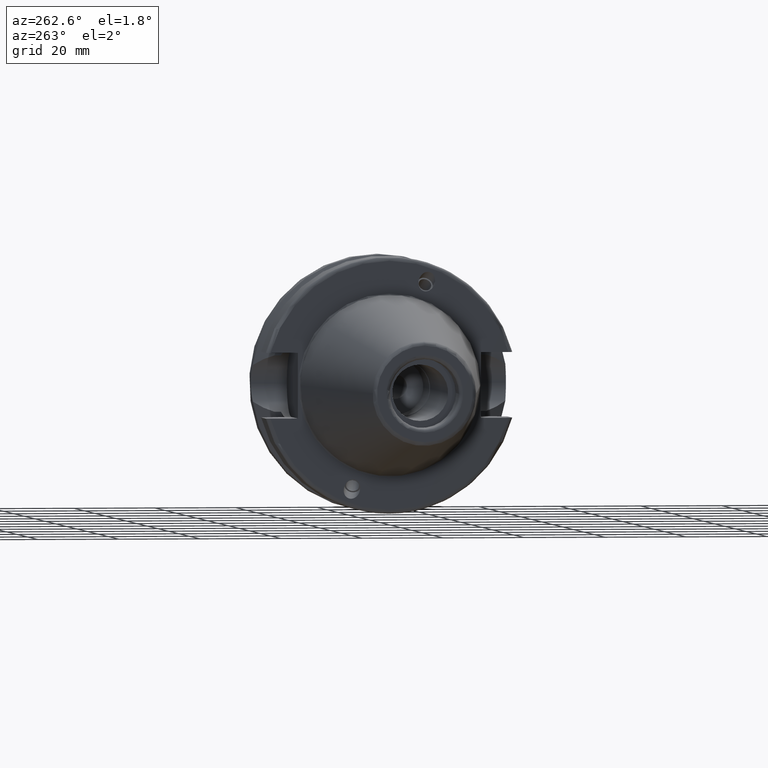
[diagram: clean part render]
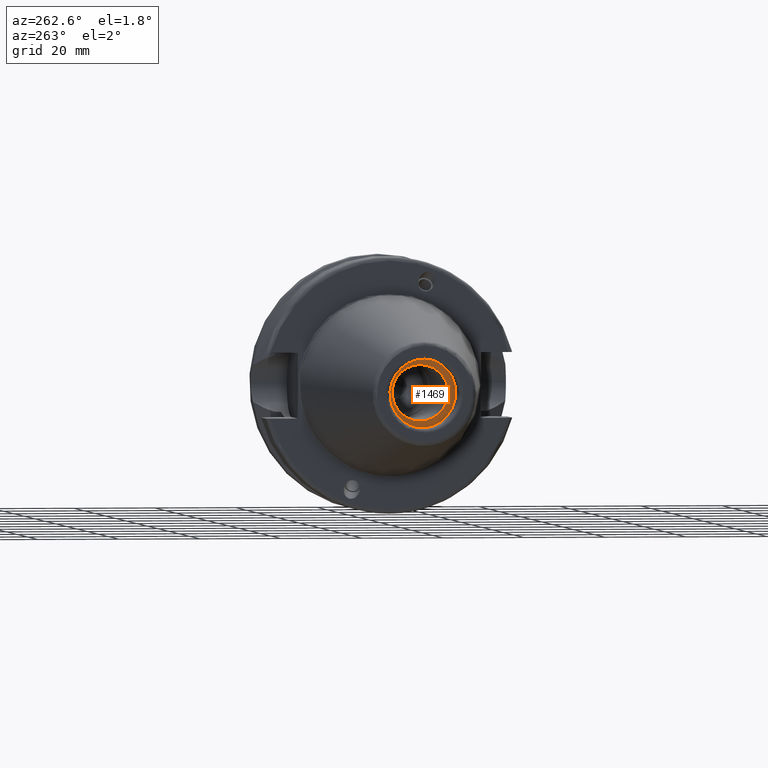
[diagram: same view with one face highlighted and labeled with its STEP entity id]
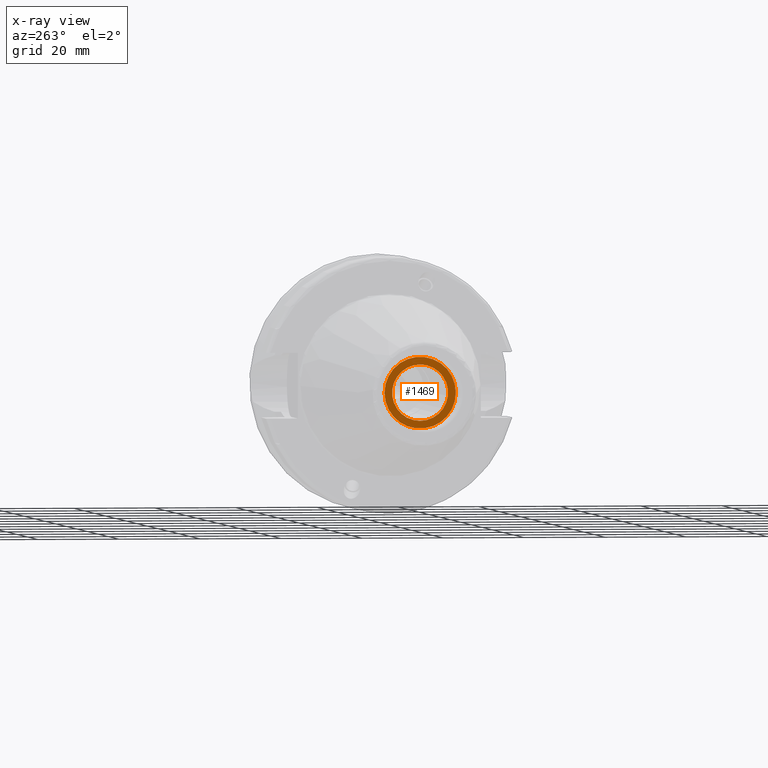
[diagram: x-ray of the same camera — body ghosted, the highlighted face saturated]
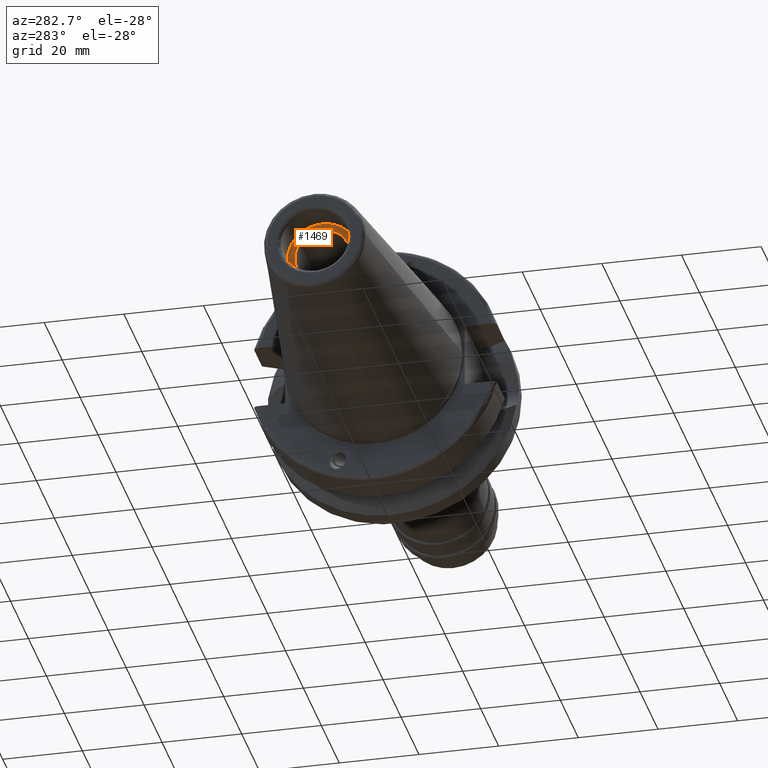
[diagram: same view with one face highlighted and labeled with its STEP entity id]
A machine part, auxiliary view. The second image highlights one B-rep face of the part: STEP entity #1469.
The next image is the same camera in x-ray: the body ghosted, the highlighted face saturated — about 0% of this face is hidden behind the body in this view.
A second angle (auxiliary view) of the same face is appended — the face is thin or edge-on in the first view.
In plain terms, the highlighted planar face has unit normal (-1, 0, 0).
Its self-contained STEP definition (entity closure, byte-faithful):
#53=PLANE('',#1674);
#85=FACE_BOUND('',#322,.T.);
#221=FACE_OUTER_BOUND('',#321,.T.);
#321=EDGE_LOOP('',(#1290));
#322=EDGE_LOOP('',(#1291));
#551=CIRCLE('',#1642,6.9175);
#566=CIRCLE('',#1675,8.8);
#664=VERTEX_POINT('',#2597);
#712=VERTEX_POINT('',#2832);
#848=EDGE_CURVE('',#664,#664,#551,.T.);
#914=EDGE_CURVE('',#712,#712,#566,.T.);
#1290=ORIENTED_EDGE('',*,*,#914,.F.);
#1291=ORIENTED_EDGE('',*,*,#848,.T.);
#1469=ADVANCED_FACE('',(#221,#85),#53,.T.);
#1642=AXIS2_PLACEMENT_3D('',#2598,#2016,#2017);
#1674=AXIS2_PLACEMENT_3D('',#2831,#2112,#2113);
#1675=AXIS2_PLACEMENT_3D('',#2833,#2114,#2115);
#2016=DIRECTION('center_axis',(1.,0.,0.));
#2017=DIRECTION('ref_axis',(0.,0.,1.));
#2112=DIRECTION('center_axis',(-1.,0.,0.));
#2113=DIRECTION('ref_axis',(0.,0.,1.));
#2114=DIRECTION('center_axis',(1.,0.,0.));
#2115=DIRECTION('ref_axis',(0.,0.,-1.));
#2597=CARTESIAN_POINT('',(-56.4,8.47149423310182E-16,-6.9175));
#2598=CARTESIAN_POINT('Origin',(-56.4,0.,0.));
#2831=CARTESIAN_POINT('Origin',(-56.4,8.8,0.));
#2832=CARTESIAN_POINT('',(-56.4,-8.8,-1.07768918324967E-15));
#2833=CARTESIAN_POINT('Origin',(-56.4,0.,0.));